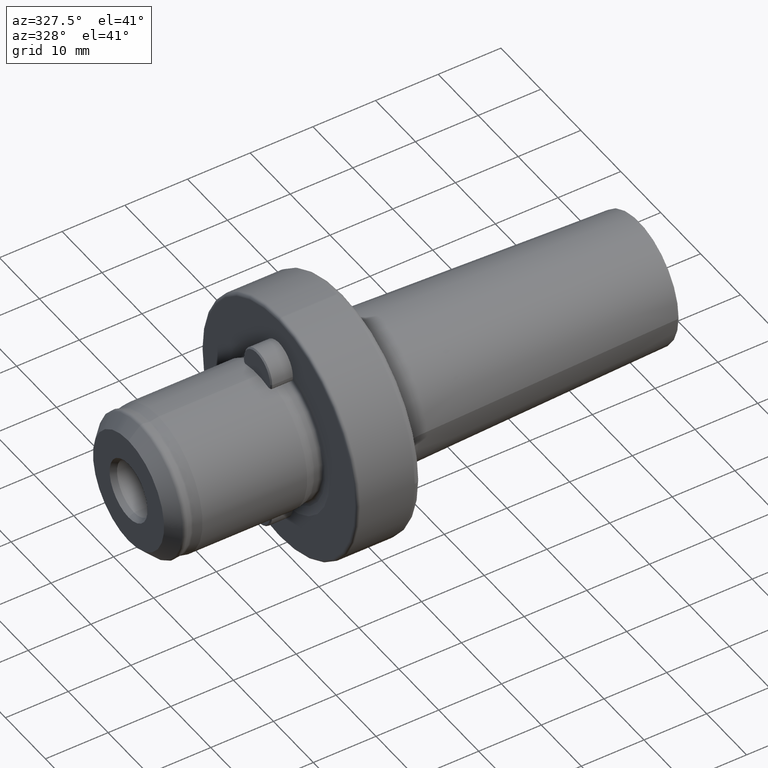
[diagram: clean part render]
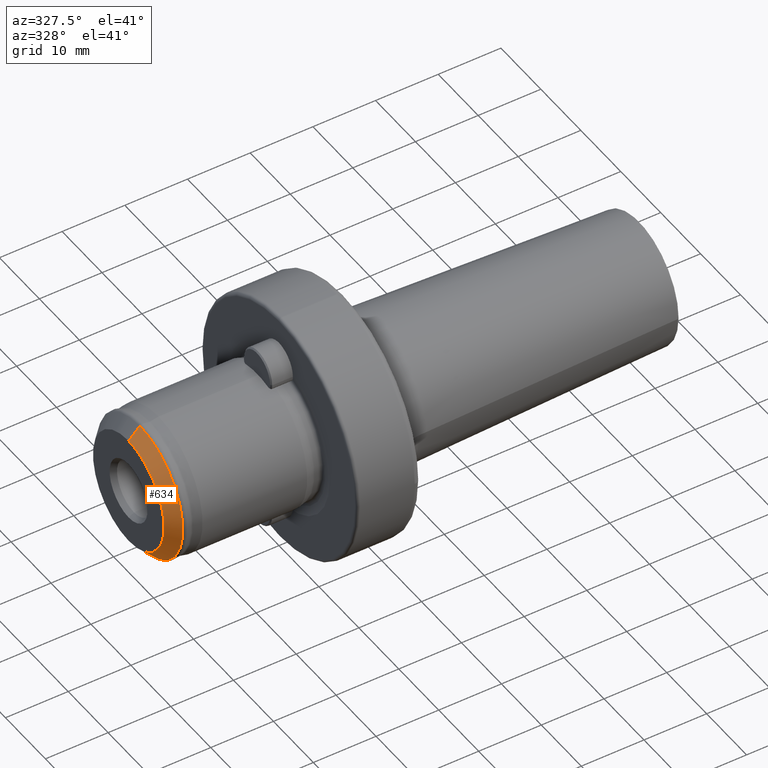
[diagram: same view with one face highlighted and labeled with its STEP entity id]
A machine part, auxiliary view. The second image highlights one B-rep face of the part: STEP entity #634.
In plain terms, the highlighted conical surface has half-angle 45 deg.
Its self-contained STEP definition (entity closure, byte-faithful):
#123 = VERTEX_POINT ( 'NONE', #4160 ) ;
#488 = DIRECTION ( 'NONE',  ( 0.0000000000000000000, 0.0000000000000000000, 1.000000000000000000 ) ) ;
#500 = DIRECTION ( 'NONE',  ( -1.000000000000000000, -0.0000000000000000000, -0.0000000000000000000 ) ) ;
#506 = CARTESIAN_POINT ( 'NONE',  ( -24.00000000000000000, 0.0000000000000000000, 0.0000000000000000000 ) ) ;
#570 = DIRECTION ( 'NONE',  ( 0.7071067811865489100, 8.659560562354915600E-017, 0.7071067811865462400 ) ) ;
#590 = CIRCLE ( 'NONE', #2144, 8.900000000000007500 ) ;
#594 = CARTESIAN_POINT ( 'NONE',  ( -22.17573593128807700, 1.313343566495902800E-015, 10.72426406871192500 ) ) ;
#634 = ADVANCED_FACE ( 'NONE', ( #1227 ), #1117, .T. ) ;
#826 = VERTEX_POINT ( 'NONE', #1094 ) ;
#907 = CARTESIAN_POINT ( 'NONE',  ( -24.00000000000000000, 1.201639608868524000E-015, 8.900000000000007500 ) ) ;
#1023 = EDGE_CURVE ( 'NONE', #1771, #3301, #590, .T. ) ;
#1094 = CARTESIAN_POINT ( 'NONE',  ( -22.17573593128807700, 1.324104288783259300E-015, -10.72426406871192500 ) ) ;
#1117 = CONICAL_SURFACE ( 'NONE', #2984, 10.72426406871192500, 0.7853981633974463900 ) ;
#1227 = FACE_OUTER_BOUND ( 'NONE', #2560, .T. ) ;
#1358 = CARTESIAN_POINT ( 'NONE',  ( -22.17573593128807700, 0.0000000000000000000, -10.72426406871192500 ) ) ;
#1368 = DIRECTION ( 'NONE',  ( 0.7071067811865489100, 0.0000000000000000000, -0.7071067811865462400 ) ) ;
#1643 = DIRECTION ( 'NONE',  ( 1.000000000000000000, 0.0000000000000000000, 0.0000000000000000000 ) ) ;
#1674 = CARTESIAN_POINT ( 'NONE',  ( -22.17573593128807700, 0.0000000000000000000, 0.0000000000000000000 ) ) ;
#1688 = DIRECTION ( 'NONE',  ( 0.0000000000000000000, 0.0000000000000000000, -1.000000000000000000 ) ) ;
#1771 = VERTEX_POINT ( 'NONE', #2319 ) ;
#1998 = EDGE_CURVE ( 'NONE', #1771, #826, #2445, .T. ) ;
#2035 = DIRECTION ( 'NONE',  ( 0.0000000000000000000, 0.0000000000000000000, 1.000000000000000000 ) ) ;
#2053 = DIRECTION ( 'NONE',  ( -1.000000000000000000, -0.0000000000000000000, -0.0000000000000000000 ) ) ;
#2066 = CARTESIAN_POINT ( 'NONE',  ( -22.17573593128807700, 0.0000000000000000000, 0.0000000000000000000 ) ) ;
#2067 = VECTOR ( 'NONE', #570, 1000.000000000000000 ) ;
#2114 = LINE ( 'NONE', #594, #2067 ) ;
#2144 = AXIS2_PLACEMENT_3D ( 'NONE', #506, #500, #488 ) ;
#2184 = EDGE_CURVE ( 'NONE', #3301, #123, #2114, .T. ) ;
#2319 = CARTESIAN_POINT ( 'NONE',  ( -24.00000000000000000, 0.0000000000000000000, -8.900000000000007500 ) ) ;
#2445 = LINE ( 'NONE', #1358, #2451 ) ;
#2451 = VECTOR ( 'NONE', #1368, 1000.000000000000000 ) ;
#2521 = ORIENTED_EDGE ( 'NONE', *, *, #4539, .T. ) ;
#2532 = ORIENTED_EDGE ( 'NONE', *, *, #1998, .T. ) ;
#2560 = EDGE_LOOP ( 'NONE', ( #2588, #2582, #2532, #2521 ) ) ;
#2582 = ORIENTED_EDGE ( 'NONE', *, *, #1023, .F. ) ;
#2588 = ORIENTED_EDGE ( 'NONE', *, *, #2184, .F. ) ;
#2824 = CIRCLE ( 'NONE', #4586, 10.72426406871192500 ) ;
#2984 = AXIS2_PLACEMENT_3D ( 'NONE', #1674, #1643, #1688 ) ;
#3301 = VERTEX_POINT ( 'NONE', #907 ) ;
#4160 = CARTESIAN_POINT ( 'NONE',  ( -22.17573593128807700, 0.0000000000000000000, 10.72426406871192500 ) ) ;
#4539 = EDGE_CURVE ( 'NONE', #826, #123, #2824, .T. ) ;
#4586 = AXIS2_PLACEMENT_3D ( 'NONE', #2066, #2053, #2035 ) ;